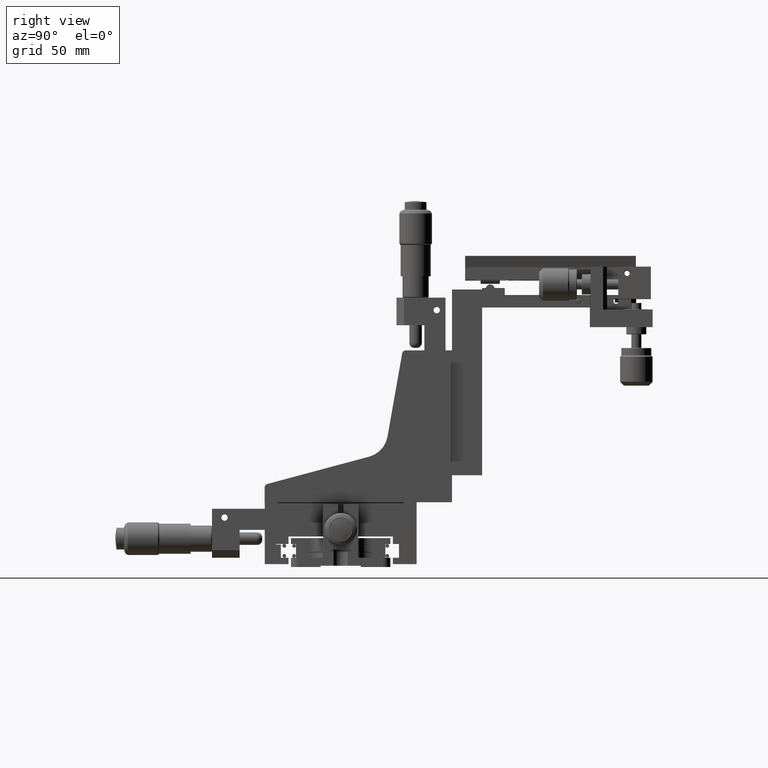
[diagram: clean part render]
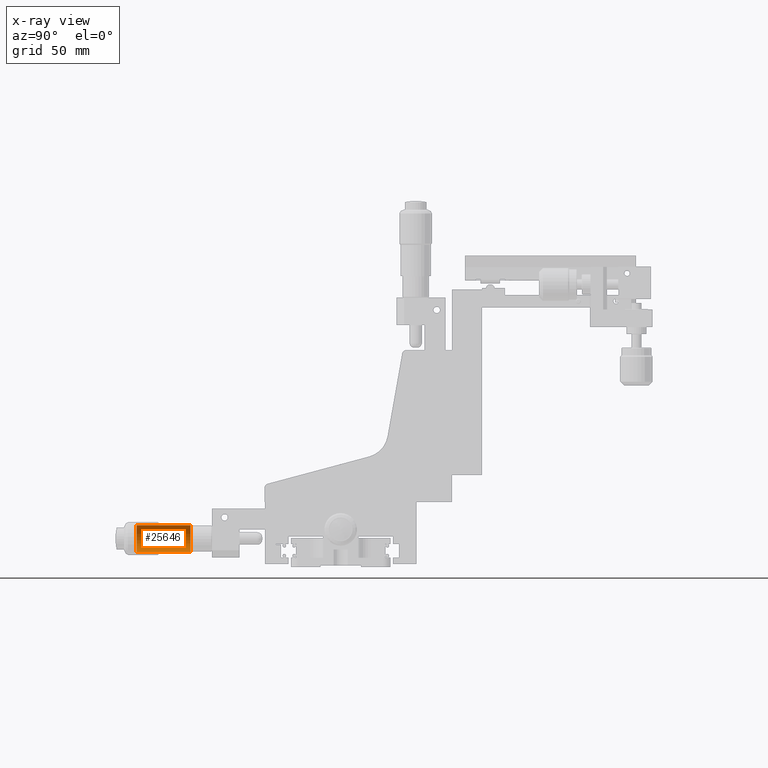
[diagram: x-ray — body ghosted, one internal face saturated and labeled with its STEP entity id]
A machine part, right view, then the same camera in x-ray: the body is ghosted and one INTERNAL B-rep face — a face not visible from any outside direction — is saturated and labeled: STEP entity #25646.
In plain terms, the highlighted cylindrical surface (edge-blend (fillet) strip) has radius 5.35 mm, axis along (-0, 1, -0).
Its self-contained STEP definition (entity closure, byte-faithful):
#12027 = LINE ( 'NONE', #12079, #12078 ) ;
#12059 = CARTESIAN_POINT ( 'NONE',  ( -6.938893903907228400E-015, -81.25000000000001400, 11.29999999999831100 ) ) ;
#12061 = CARTESIAN_POINT ( 'NONE',  ( -6.283707866363393900E-015, -81.25000000000001400, 5.949999999998311800 ) ) ;
#12068 = DIRECTION ( 'NONE',  ( 0.0000000000000000000, 0.0000000000000000000, 1.000000000000000000 ) ) ;
#12069 = DIRECTION ( 'NONE',  ( 0.0000000000000000000, 1.000000000000000000, 0.0000000000000000000 ) ) ;
#12070 = CARTESIAN_POINT ( 'NONE',  ( -6.938893903907228400E-015, -59.75000000000002800, 11.29999999999831100 ) ) ;
#12071 = AXIS2_PLACEMENT_3D ( 'NONE', #12070, #12069, #12068 ) ;
#12072 = CIRCLE ( 'NONE', #12071, 5.350000000000000500 ) ;
#12075 = AXIS2_PLACEMENT_3D ( 'NONE', #12059, #12091, #12090 ) ;
#12077 = DIRECTION ( 'NONE',  ( -0.0000000000000000000, 1.000000000000000000, -0.0000000000000000000 ) ) ;
#12078 = VECTOR ( 'NONE', #12077, 1000.000000000000000 ) ;
#12079 = CARTESIAN_POINT ( 'NONE',  ( -6.283707866363393900E-015, -81.25000000000001400, 5.949999999998311800 ) ) ;
#12080 = CARTESIAN_POINT ( 'NONE',  ( -6.283707866363393900E-015, -59.75000000000002800, 5.949999999998311800 ) ) ;
#12090 = DIRECTION ( 'NONE',  ( 0.0000000000000000000, 0.0000000000000000000, 1.000000000000000000 ) ) ;
#12091 = DIRECTION ( 'NONE',  ( -0.0000000000000000000, 1.000000000000000000, -0.0000000000000000000 ) ) ;
#12092 = FACE_OUTER_BOUND ( 'NONE', #25634, .T. ) ;
#12093 = DIRECTION ( 'NONE',  ( -0.0000000000000000000, 1.000000000000000000, -0.0000000000000000000 ) ) ;
#12094 = VECTOR ( 'NONE', #12093, 1000.000000000000000 ) ;
#12095 = CARTESIAN_POINT ( 'NONE',  ( -6.938893903907228400E-015, -81.25000000000001400, 16.64999999999831100 ) ) ;
#12096 = LINE ( 'NONE', #12095, #12094 ) ;
#12100 = CARTESIAN_POINT ( 'NONE',  ( -6.938893903907228400E-015, -81.25000000000001400, 16.64999999999831100 ) ) ;
#12101 = DIRECTION ( 'NONE',  ( 0.0000000000000000000, 0.0000000000000000000, 1.000000000000000000 ) ) ;
#12102 = DIRECTION ( 'NONE',  ( 0.0000000000000000000, 1.000000000000000000, 0.0000000000000000000 ) ) ;
#12103 = CARTESIAN_POINT ( 'NONE',  ( -6.938893903907228400E-015, -81.25000000000001400, 11.29999999999831100 ) ) ;
#12104 = AXIS2_PLACEMENT_3D ( 'NONE', #12103, #12102, #12101 ) ;
#12105 = CARTESIAN_POINT ( 'NONE',  ( -6.938893903907228400E-015, -59.75000000000002800, 16.64999999999831100 ) ) ;
#12107 = CYLINDRICAL_SURFACE ( 'NONE', #12075, 5.350000000000000500 ) ;
#12110 = CIRCLE ( 'NONE', #12104, 5.350000000000000500 ) ;
#25616 = ORIENTED_EDGE ( 'NONE', *, *, #25637, .F. ) ;
#25617 = EDGE_CURVE ( 'NONE', #25644, #25619, #12027, .T. ) ;
#25619 = VERTEX_POINT ( 'NONE', #12080 ) ;
#25620 = ORIENTED_EDGE ( 'NONE', *, *, #25617, .T. ) ;
#25621 = EDGE_CURVE ( 'NONE', #25619, #25647, #12072, .T. ) ;
#25624 = ORIENTED_EDGE ( 'NONE', *, *, #25640, .F. ) ;
#25634 = EDGE_LOOP ( 'NONE', ( #25616, #25620, #25641, #25624 ) ) ;
#25637 = EDGE_CURVE ( 'NONE', #25644, #25645, #12110, .T. ) ;
#25640 = EDGE_CURVE ( 'NONE', #25645, #25647, #12096, .T. ) ;
#25641 = ORIENTED_EDGE ( 'NONE', *, *, #25621, .T. ) ;
#25644 = VERTEX_POINT ( 'NONE', #12061 ) ;
#25645 = VERTEX_POINT ( 'NONE', #12100 ) ;
#25646 = ADVANCED_FACE ( 'NONE', ( #12092 ), #12107, .F. ) ;
#25647 = VERTEX_POINT ( 'NONE', #12105 ) ;